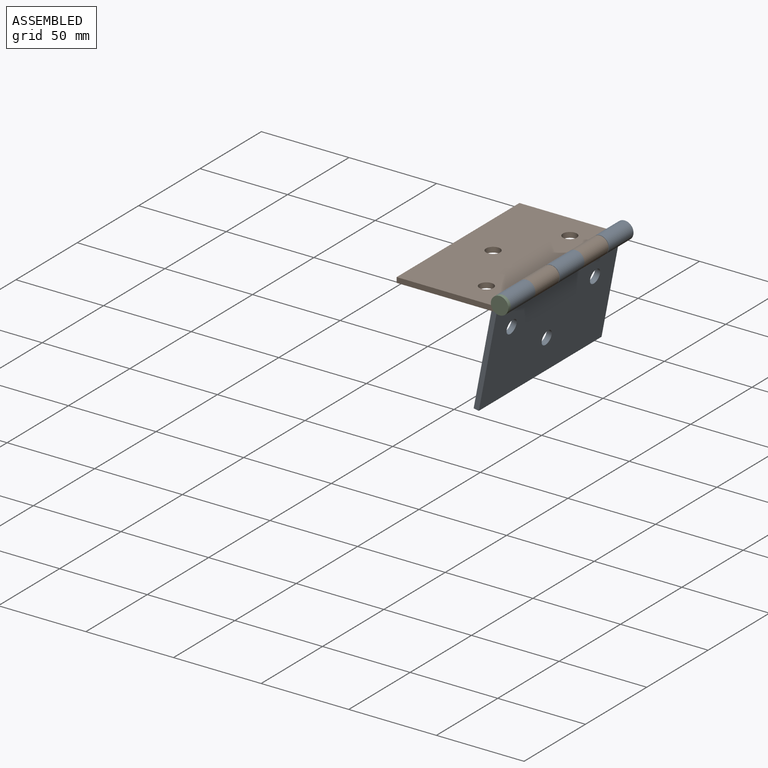
[diagram: assembled view]
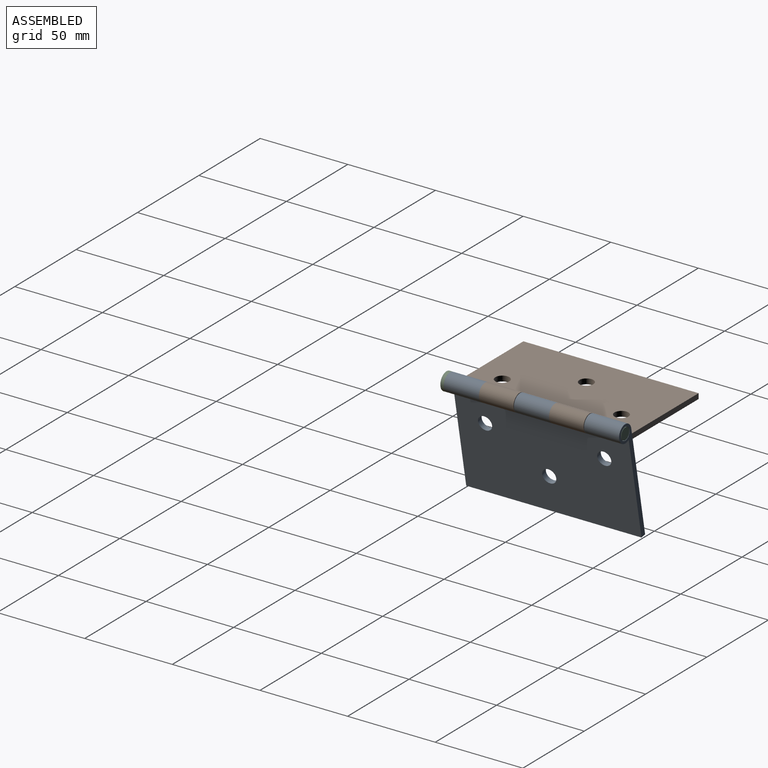
[diagram: assembled view, second angle]
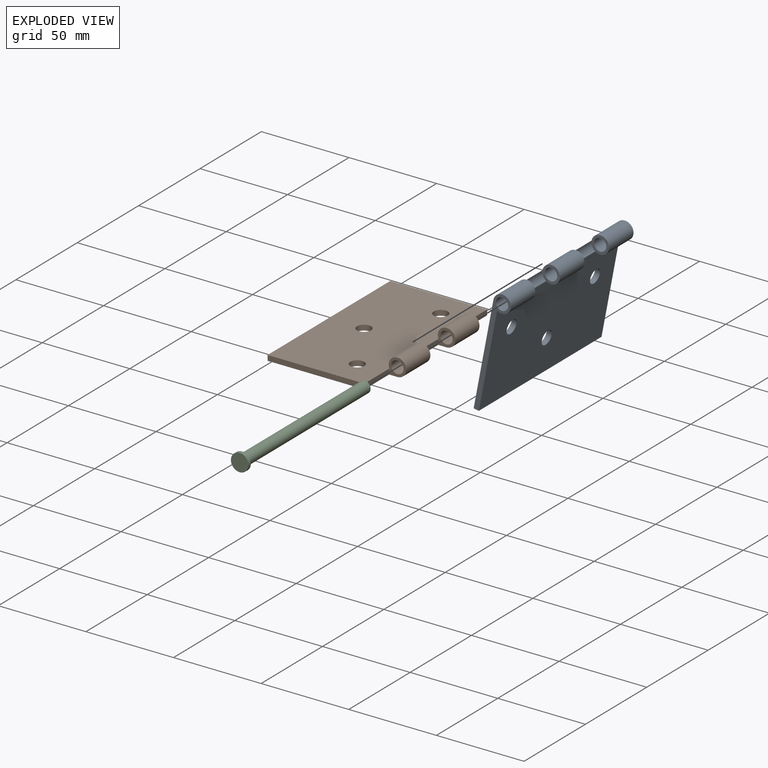
[diagram: exploded view]
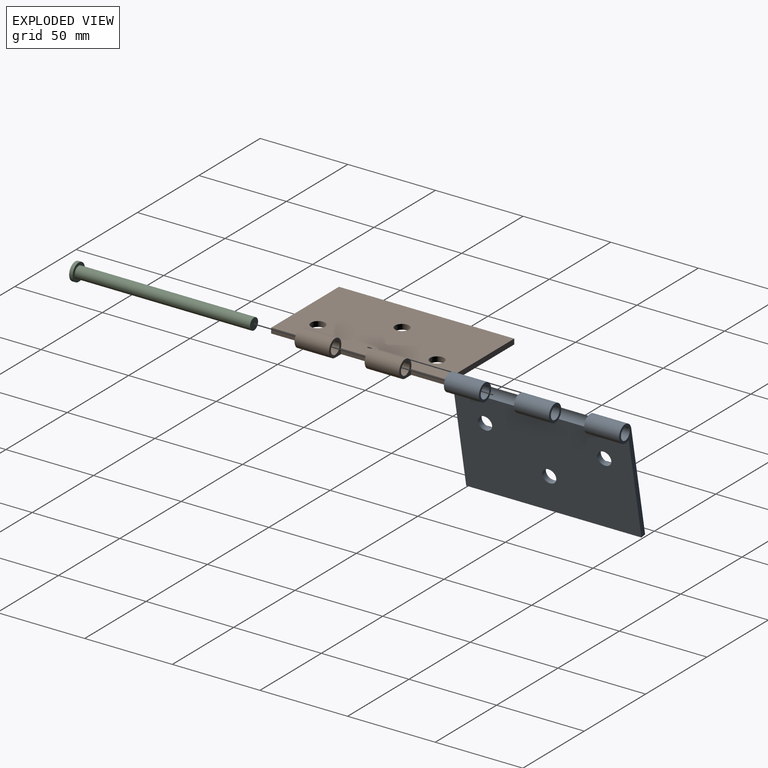
[diagram: exploded view, second angle]
ASSEMBLY  parts=3 mates=2
PART A: 20 faces, bbox 65x100x10 mm
  f0: cylinder r=3.5mm len=20mm, axis (0,1,0), area 439.8mm2, adj f3,f18
  f1: cylinder r=5mm len=20mm, axis (0,1,0), area 512.4mm2, adj f3,f9,f10,f18
  f2: cylinder r=5mm len=20mm, axis (0,1,0), area 512.4mm2, adj f9,f10,f15,f17
  f3: plane 65x10mm, normal (0,-1,0), area 210.1mm2, adj f0,f1,f4,f9,f10
  f4: plane 100x3mm, normal (1,0,0), area 300mm2, adj f3,f5,f9,f10
  f5: plane 65x10mm, normal (0,1,0), area 210.1mm2, adj f4,f9,f10,f11,f12
  f6: cylinder r=4mm len=8mm, axis (0,0,-1), area 75.4mm2, adj f9,f10
  f7: cylinder r=4mm len=8mm, axis (0,0,-1), area 75.4mm2, adj f9,f10
  f8: cylinder r=4mm len=8mm, axis (0,0,-1), area 75.4mm2, adj f9,f10
  f9: plane 100x55.42mm, normal (0,0,1), area 5390.9mm2, adj f1,f2,f3,f4,f5,f6,f7,f8
  f10: plane 100x60mm, normal (0,0,-1), area 5849.2mm2, adj f1,f2,f3,f4,f5,f6,f7,f8
  f11: cylinder r=3.5mm len=20mm, axis (0,1,0), area 439.8mm2, adj f5,f14
  f12: cylinder r=5mm len=20mm, axis (0,1,0), area 512.4mm2, adj f5,f9,f10,f14
  f13: cylinder r=5mm len=20mm, axis (0,-1,0), area 115.9mm2, adj f9,f10,f14,f15
  f14: plane 10x10mm, normal (0,-1,0), area 40.1mm2, adj f11,f12,f13
  f15: plane 10x10mm, normal (0,1,0), area 40.1mm2, adj f2,f13,f19
  f16: cylinder r=5mm len=20mm, axis (0,-1,0), area 115.9mm2, adj f9,f10,f17,f18
  f17: plane 10x10mm, normal (0,-1,0), area 40.1mm2, adj f2,f16,f19
  f18: plane 10x10mm, normal (0,1,0), area 40.1mm2, adj f0,f1,f16
  f19: cylinder r=3.5mm len=20mm, axis (0,1,0), area 439.8mm2, adj f15,f17
PART B: 19 faces, bbox 65x100x10 mm
  f0: plane 55.22x3mm, normal (0,1,0), area 165.7mm2, adj f4,f8,f9,f17
  f1: plane 55.24x3mm, normal (0,-1,0), area 165.7mm2, adj f4,f8,f9,f16
  f2: cylinder r=5mm len=19.7mm, axis (0,-1,0), area 504.7mm2, adj f8,f9,f10,f11
  f3: cylinder r=5mm len=19.7mm, axis (0,-1,0), area 504.7mm2, adj f8,f9,f12,f13
  f4: plane 100x3mm, normal (-1,0,0), area 300mm2, adj f0,f1,f8,f9
  f5: cylinder r=4mm len=8mm, axis (0,0,-1), area 75.4mm2, adj f8,f9
  f6: cylinder r=4mm len=8mm, axis (0,0,-1), area 75.4mm2, adj f8,f9
  f7: cylinder r=4mm len=8mm, axis (0,0,-1), area 75.4mm2, adj f8,f9
  f8: plane 100x55.42mm, normal (0,0,1), area 5379.3mm2, adj f0,f1,f2,f3,f4,f5,f6,f7
  f9: plane 100x60mm, normal (0,0,-1), area 5559.9mm2, adj f0,f1,f2,f3,f4,f5,f6,f7
  f10: plane 10x10mm, normal (0,-1,0), area 44.4mm2, adj f2,f8,f9,f15,f16
  f11: plane 10x10mm, normal (0,1,0), area 44.5mm2, adj f2,f8,f9,f15,f18
  f12: plane 10x10mm, normal (0,-1,0), area 44.5mm2, adj f3,f8,f9,f14,f18
  f13: plane 10x10mm, normal (0,1,0), area 44.5mm2, adj f3,f8,f9,f14,f17
  f14: cylinder r=3.5mm len=19.7mm, axis (0,-1,0), area 433.2mm2, adj f12,f13
  f15: cylinder r=3.5mm len=19.7mm, axis (0,-1,0), area 433.2mm2, adj f10,f11
  f16: plane 20.15x3mm, normal (1,0,0), area 60.5mm2, adj f1,f8,f9,f10
  f17: plane 20.15x3mm, normal (1,0,0), area 60.4mm2, adj f0,f8,f9,f13
  f18: plane 20.3x3mm, normal (1,0,0), area 60.9mm2, adj f8,f9,f11,f12
PART C: 5 faces, bbox 10x102x10 mm
  f0: cylinder r=3.3mm len=100mm, axis (0,-1,0), area 2073.5mm2, adj f1,f4
  f1: plane 6.6x6.6mm, normal (0,1,0), area 34.2mm2, adj f0
  f2: cylinder r=5mm len=10mm, axis (0,1,0), area 62.8mm2, adj f3,f4
  f3: plane 10x10mm, normal (0,-1,0), area 78.5mm2, adj f2
  f4: plane 10x10mm, normal (0,1,0), area 44.3mm2, adj f0,f2
PLACE A rot(axis=(0,1,0),100.8deg) t=(-34.36,1.71,-26.32)mm
PLACE B t=(6.19,1.56,-2.8)mm fixed
PLACE C rot(axis=(0,1,0),100.8deg) t=(-34.36,1.71,-26.32)mm
MATE revolute B.f2 <-> A.f0  axis (0,-1,0) through (-23.81,-28.29,2.2)mm
MATE fastened C.f0 <-> A.f0  axis (0,-1,0) through (-23.81,51.71,2.2)mm
